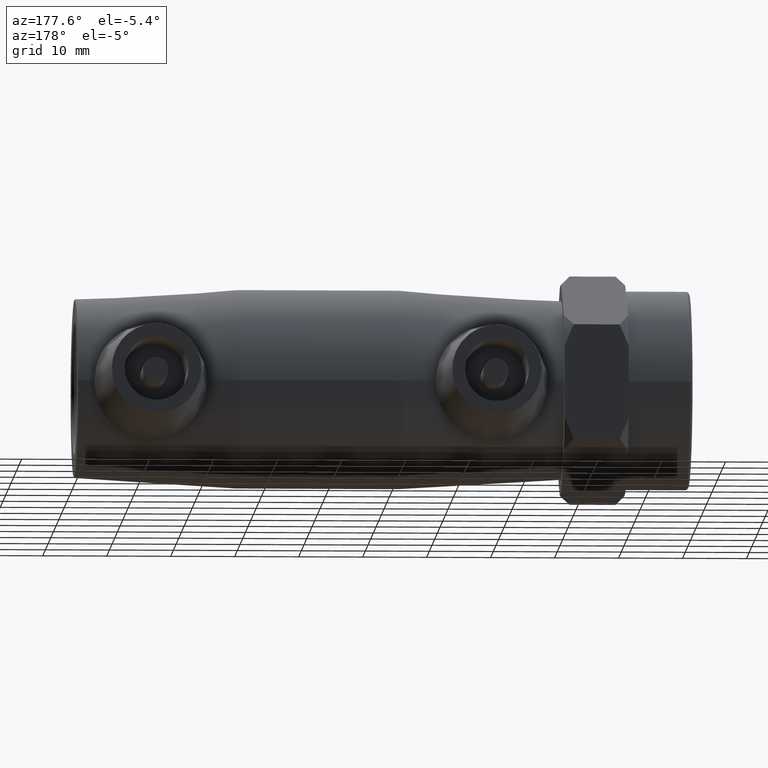
[diagram: clean part render]
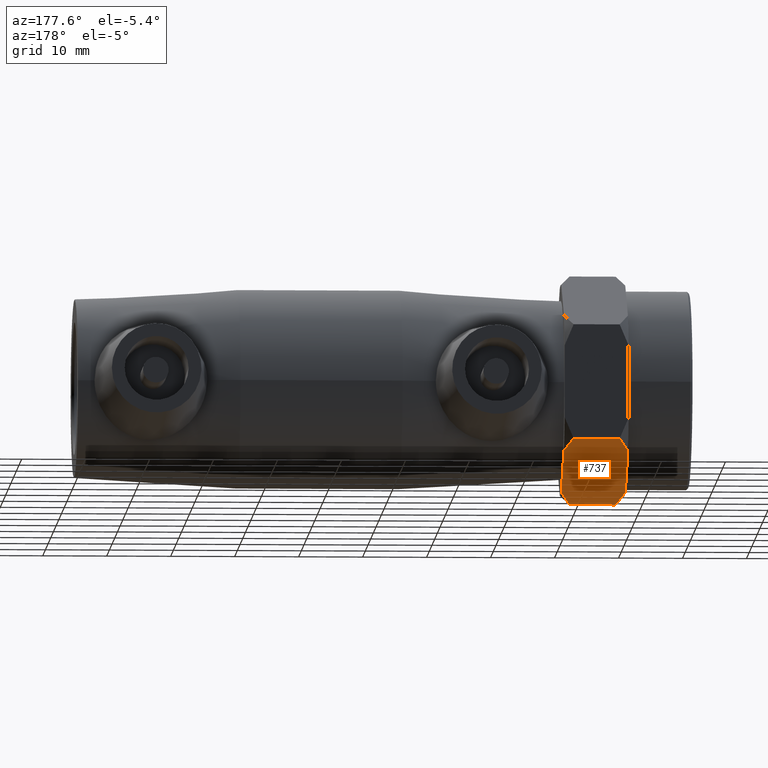
[diagram: same view with one face highlighted and labeled with its STEP entity id]
A machine part, auxiliary view. The second image highlights one B-rep face of the part: STEP entity #737.
In plain terms, the highlighted planar face has unit normal (0, 0.5, -0.866).
Its self-contained STEP definition (entity closure, byte-faithful):
#18=LINE('',#1264,#42);
#19=LINE('',#1266,#43);
#25=LINE('',#1275,#49);
#29=LINE('',#1280,#53);
#30=LINE('',#1281,#54);
#42=VECTOR('',#966,5.65060438959176);
#43=VECTOR('',#969,5.65060438959176);
#49=VECTOR('',#981,7.2);
#53=VECTOR('',#987,7.2);
#54=VECTOR('',#988,11.3012087791835);
#70=(
BOUNDED_CURVE()
B_SPLINE_CURVE(2,(#1159,#1160,#1161),.UNSPECIFIED.,.F.,.F.)
B_SPLINE_CURVE_WITH_KNOTS((3,3),(0.,0.358514613542279),.UNSPECIFIED.)
CURVE()
GEOMETRIC_REPRESENTATION_ITEM()
RATIONAL_B_SPLINE_CURVE((1.,1.00462973355031,1.))
REPRESENTATION_ITEM('')
);
#75=(
BOUNDED_CURVE()
B_SPLINE_CURVE(2,(#1188,#1189,#1190),.UNSPECIFIED.,.F.,.F.)
B_SPLINE_CURVE_WITH_KNOTS((3,3),(0.,0.358514613542279),.UNSPECIFIED.)
CURVE()
GEOMETRIC_REPRESENTATION_ITEM()
RATIONAL_B_SPLINE_CURVE((1.,1.00462973355008,1.))
REPRESENTATION_ITEM('')
);
#86=(
BOUNDED_CURVE()
B_SPLINE_CURVE(2,(#1248,#1249,#1250),.UNSPECIFIED.,.F.,.F.)
B_SPLINE_CURVE_WITH_KNOTS((3,3),(0.,0.358514613542281),.UNSPECIFIED.)
CURVE()
GEOMETRIC_REPRESENTATION_ITEM()
RATIONAL_B_SPLINE_CURVE((1.,1.00462973355004,1.))
REPRESENTATION_ITEM('')
);
#87=(
BOUNDED_CURVE()
B_SPLINE_CURVE(2,(#1254,#1255,#1256),.UNSPECIFIED.,.F.,.F.)
B_SPLINE_CURVE_WITH_KNOTS((3,3),(0.,0.358514613542281),.UNSPECIFIED.)
CURVE()
GEOMETRIC_REPRESENTATION_ITEM()
RATIONAL_B_SPLINE_CURVE((1.,1.00462973355008,1.))
REPRESENTATION_ITEM('')
);
#106=PLANE('',#820);
#178=FACE_OUTER_BOUND('',#240,.T.);
#240=EDGE_LOOP('',(#584,#585,#586,#587,#588,#589,#590,#591,#592));
#346=VERTEX_POINT('',#1119);
#357=VERTEX_POINT('',#1153);
#359=VERTEX_POINT('',#1158);
#366=VERTEX_POINT('',#1186);
#367=VERTEX_POINT('',#1187);
#382=VERTEX_POINT('',#1242);
#383=VERTEX_POINT('',#1246);
#384=VERTEX_POINT('',#1252);
#385=VERTEX_POINT('',#1253);
#429=EDGE_CURVE('',#359,#357,#70,.T.);
#437=EDGE_CURVE('',#366,#367,#75,.T.);
#454=EDGE_CURVE('',#382,#383,#86,.T.);
#455=EDGE_CURVE('',#384,#385,#87,.T.);
#459=EDGE_CURVE('',#346,#367,#18,.T.);
#460=EDGE_CURVE('',#359,#346,#19,.T.);
#466=EDGE_CURVE('',#385,#366,#25,.T.);
#470=EDGE_CURVE('',#382,#357,#29,.T.);
#471=EDGE_CURVE('',#383,#384,#30,.T.);
#584=ORIENTED_EDGE('',*,*,#437,.T.);
#585=ORIENTED_EDGE('',*,*,#459,.F.);
#586=ORIENTED_EDGE('',*,*,#460,.F.);
#587=ORIENTED_EDGE('',*,*,#429,.T.);
#588=ORIENTED_EDGE('',*,*,#470,.F.);
#589=ORIENTED_EDGE('',*,*,#454,.T.);
#590=ORIENTED_EDGE('',*,*,#471,.T.);
#591=ORIENTED_EDGE('',*,*,#455,.T.);
#592=ORIENTED_EDGE('',*,*,#466,.T.);
#737=ADVANCED_FACE('',(#178),#106,.T.);
#820=AXIS2_PLACEMENT_3D('',#1279,#985,#986);
#966=DIRECTION('',(0.,-0.866025403784439,-0.5));
#969=DIRECTION('',(0.,-0.866025403784439,-0.5));
#981=DIRECTION('',(-1.,0.,0.));
#985=DIRECTION('center_axis',(0.,0.5,-0.866025403784439));
#986=DIRECTION('ref_axis',(0.,-0.866025403784439,-0.5));
#987=DIRECTION('',(-1.,0.,0.));
#988=DIRECTION('',(0.,-0.866025403784439,-0.5));
#1119=CARTESIAN_POINT('',(-48.,7.74999999999999,-13.4233937586588));
#1153=CARTESIAN_POINT('',(-46.6,15.5,-8.94892917243919));
#1158=CARTESIAN_POINT('',(-48.,12.6435669481223,-10.5980915638629));
#1159=CARTESIAN_POINT('Ctrl Pts',(-48.,12.6435669481223,-10.5980915638629));
#1160=CARTESIAN_POINT('Ctrl Pts',(-47.4581439118026,14.0136511445519,-9.80707308424183));
#1161=CARTESIAN_POINT('Ctrl Pts',(-46.6,15.5,-8.9489291724392));
#1186=CARTESIAN_POINT('',(-46.6,-1.17683640610267E-13,-17.8978583448784));
#1187=CARTESIAN_POINT('',(-48.,2.85643305187767,-16.2486959534547));
#1188=CARTESIAN_POINT('Ctrl Pts',(-46.6,1.50203579048814E-14,-17.8978583448784));
#1189=CARTESIAN_POINT('Ctrl Pts',(-47.4581439118026,1.48634885544809,-17.0397144330757));
#1190=CARTESIAN_POINT('Ctrl Pts',(-48.,2.85643305187768,-16.2486959534547));
#1242=CARTESIAN_POINT('',(-39.4,15.5,-8.94892917243919));
#1246=CARTESIAN_POINT('',(-38.,12.6435669481223,-10.5980915638629));
#1248=CARTESIAN_POINT('Ctrl Pts',(-39.4,15.5,-8.9489291724392));
#1249=CARTESIAN_POINT('Ctrl Pts',(-38.5418560881974,14.013651144552,-9.80707308424181));
#1250=CARTESIAN_POINT('Ctrl Pts',(-38.,12.6435669481223,-10.5980915638629));
#1252=CARTESIAN_POINT('',(-38.,2.85643305187767,-16.2486959534547));
#1253=CARTESIAN_POINT('',(-39.4,-1.22124532708767E-13,-17.8978583448784));
#1254=CARTESIAN_POINT('Ctrl Pts',(-38.,2.85643305187769,-16.2486959534547));
#1255=CARTESIAN_POINT('Ctrl Pts',(-38.5418560881974,1.48634885544799,-17.0397144330758));
#1256=CARTESIAN_POINT('Ctrl Pts',(-39.4,9.24329717223473E-15,-17.8978583448784));
#1264=CARTESIAN_POINT('',(-48.,15.5,-8.94892917243921));
#1266=CARTESIAN_POINT('',(-48.,15.5,-8.94892917243921));
#1275=CARTESIAN_POINT('',(-38.,-5.31512119350343E-14,-17.8978583448784));
#1279=CARTESIAN_POINT('Origin',(-38.,15.5,-8.94892917243921));
#1280=CARTESIAN_POINT('',(-38.,15.5,-8.94892917243921));
#1281=CARTESIAN_POINT('',(-38.,15.5,-8.94892917243921));